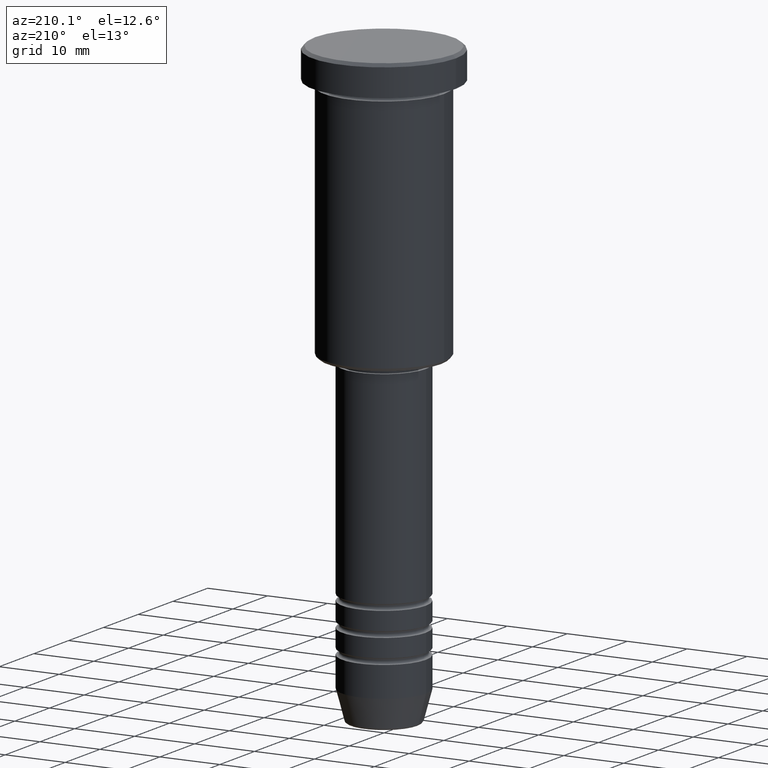
[diagram: clean part render]
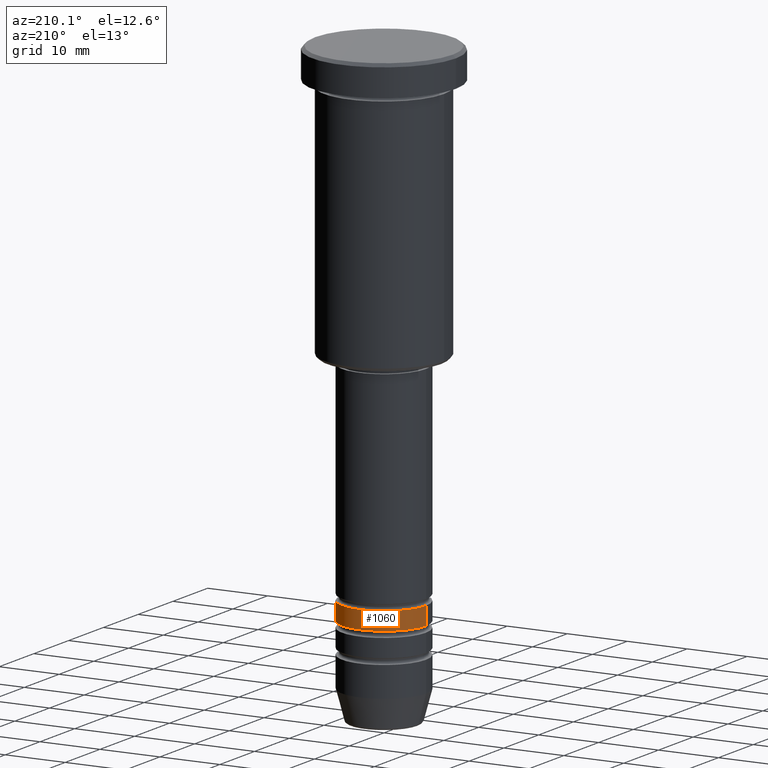
[diagram: same view with one face highlighted and labeled with its STEP entity id]
A machine part, auxiliary view. The second image highlights one B-rep face of the part: STEP entity #1060.
In plain terms, the highlighted cylindrical surface (partial cylindrical patch) has radius 7 mm, axis along (-0, -0, 1).
Its self-contained STEP definition (entity closure, byte-faithful):
#85 = ORIENTED_EDGE ( 'NONE', *, *, #507, .T. ) ;
#142 = CARTESIAN_POINT ( 'NONE',  ( 7.000000000000000000, 0.000000000000000000, -81.99999999999998579 ) ) ;
#150 = AXIS2_PLACEMENT_3D ( 'NONE', #346, #1103, #921 ) ;
#162 = EDGE_CURVE ( 'NONE', #254, #517, #170, .T. ) ;
#170 = CIRCLE ( 'NONE', #314, 7.000000000000002665 ) ;
#208 = VECTOR ( 'NONE', #285, 1000.000000000000000 ) ;
#230 = CARTESIAN_POINT ( 'NONE',  ( -7.000000000000000000, 8.572527594031473190E-16, -81.99999999999998579 ) ) ;
#246 = DIRECTION ( 'NONE',  ( -0.000000000000000000, -0.000000000000000000, 1.000000000000000000 ) ) ;
#254 = VERTEX_POINT ( 'NONE', #1066 ) ;
#269 = EDGE_LOOP ( 'NONE', ( #1098, #85, #740, #647 ) ) ;
#278 = VECTOR ( 'NONE', #757, 1000.000000000000000 ) ;
#285 = DIRECTION ( 'NONE',  ( -0.000000000000000000, -0.000000000000000000, 1.000000000000000000 ) ) ;
#308 = VERTEX_POINT ( 'NONE', #142 ) ;
#314 = AXIS2_PLACEMENT_3D ( 'NONE', #651, #246, #629 ) ;
#335 = FACE_OUTER_BOUND ( 'NONE', #269, .T. ) ;
#346 = CARTESIAN_POINT ( 'NONE',  ( 0.000000000000000000, 0.000000000000000000, 0.000000000000000000 ) ) ;
#362 = LINE ( 'NONE', #1043, #278 ) ;
#448 = VERTEX_POINT ( 'NONE', #230 ) ;
#505 = DIRECTION ( 'NONE',  ( -0.000000000000000000, -0.000000000000000000, 1.000000000000000000 ) ) ;
#507 = EDGE_CURVE ( 'NONE', #517, #448, #362, .T. ) ;
#517 = VERTEX_POINT ( 'NONE', #668 ) ;
#573 = CARTESIAN_POINT ( 'NONE',  ( 7.000000000000000888, 0.000000000000000000, 0.000000000000000000 ) ) ;
#611 = CARTESIAN_POINT ( 'NONE',  ( 0.000000000000000000, 0.000000000000000000, -81.99999999999998579 ) ) ;
#629 = DIRECTION ( 'NONE',  ( 1.000000000000000000, 0.000000000000000000, 0.000000000000000000 ) ) ;
#647 = ORIENTED_EDGE ( 'NONE', *, *, #1172, .F. ) ;
#651 = CARTESIAN_POINT ( 'NONE',  ( 0.000000000000000000, 0.000000000000000000, -84.99999999999998579 ) ) ;
#668 = CARTESIAN_POINT ( 'NONE',  ( -7.000000000000002665, 8.572527594031475162E-16, -84.99999999999998579 ) ) ;
#703 = DIRECTION ( 'NONE',  ( 1.000000000000000000, 0.000000000000000000, 0.000000000000000000 ) ) ;
#740 = ORIENTED_EDGE ( 'NONE', *, *, #786, .F. ) ;
#757 = DIRECTION ( 'NONE',  ( -0.000000000000000000, -0.000000000000000000, 1.000000000000000000 ) ) ;
#786 = EDGE_CURVE ( 'NONE', #308, #448, #819, .T. ) ;
#819 = CIRCLE ( 'NONE', #1155, 7.000000000000000000 ) ;
#921 = DIRECTION ( 'NONE',  ( 1.000000000000000000, 0.000000000000000000, 0.000000000000000000 ) ) ;
#1043 = CARTESIAN_POINT ( 'NONE',  ( -7.000000000000000888, 8.572527594031474176E-16, 0.000000000000000000 ) ) ;
#1060 = ADVANCED_FACE ( 'NONE', ( #335 ), #1175, .T. ) ;
#1066 = CARTESIAN_POINT ( 'NONE',  ( 7.000000000000002665, 0.000000000000000000, -84.99999999999998579 ) ) ;
#1098 = ORIENTED_EDGE ( 'NONE', *, *, #162, .T. ) ;
#1103 = DIRECTION ( 'NONE',  ( -0.000000000000000000, -0.000000000000000000, 1.000000000000000000 ) ) ;
#1117 = LINE ( 'NONE', #573, #208 ) ;
#1155 = AXIS2_PLACEMENT_3D ( 'NONE', #611, #505, #703 ) ;
#1172 = EDGE_CURVE ( 'NONE', #254, #308, #1117, .T. ) ;
#1175 = CYLINDRICAL_SURFACE ( 'NONE', #150, 7.000000000000000888 ) ;